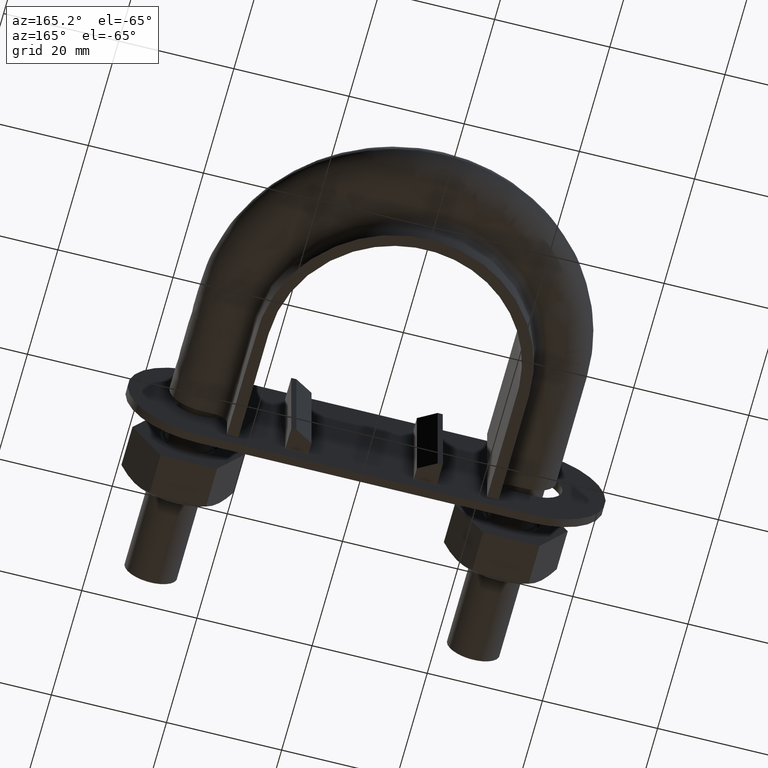
[diagram: clean part render]
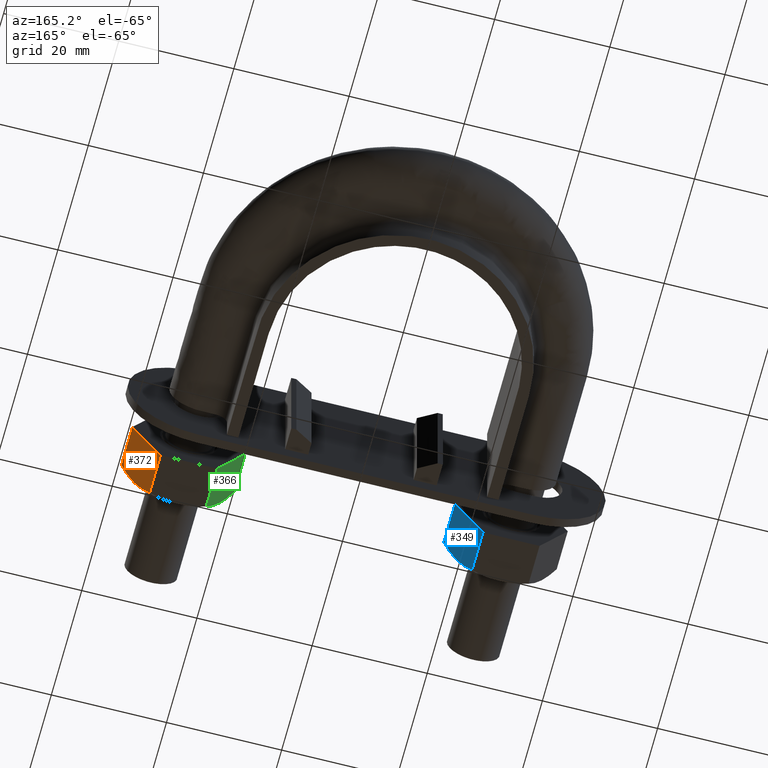
[diagram: same view with three faces highlighted in distinct colors, each labeled with its STEP entity id]
A machine part, auxiliary view with three faces highlighted in distinct colors.
Their STEP definitions:

[orange] entity #372 — the highlighted planar face has unit normal (-0.866, 0, 0.5).
#372 = ADVANCED_FACE( '', ( #619 ), #620, .F. );
#619 = FACE_OUTER_BOUND( '', #1701, .T. );
#620 = PLANE( '', #1702 );
#1701 = EDGE_LOOP( '', ( #2494, #2495, #2496, #2497, #2498 ) );
#1702 = AXIS2_PLACEMENT_3D( '', #2499, #2500, #2501 );
#2494 = ORIENTED_EDGE( '', *, *, #2747, .F. );
#2495 = ORIENTED_EDGE( '', *, *, #2780, .F. );
#2496 = ORIENTED_EDGE( '', *, *, #2781, .F. );
#2497 = ORIENTED_EDGE( '', *, *, #2754, .F. );
#2498 = ORIENTED_EDGE( '', *, *, #2774, .F. );
#2499 = CARTESIAN_POINT( '', ( 37.8149545762238, 25.0000000000002, -4.60010678743483E-012 ) );
#2500 = DIRECTION( '', ( -0.866025403784202, 1.81492883563560E-016, 0.500000000000410 ) );
#2501 = DIRECTION( '', ( 0.500000000000410, -1.75487645984624E-016, 0.866025403784202 ) );
#2747 = EDGE_CURVE( '', #3110, #3123, #3124, .T. );
#2754 = EDGE_CURVE( '', #3134, #3136, #3137, .T. );
#2774 = EDGE_CURVE( '', #3123, #3134, #3167, .T. );
#2780 = EDGE_CURVE( '', #3175, #3110, #3176, .T. );
#2781 = EDGE_CURVE( '', #3136, #3175, #3177, .F. );
#3110 = VERTEX_POINT( '', #3921 );
#3123 = VERTEX_POINT( '', #3942 );
#3124 = B_SPLINE_CURVE_WITH_KNOTS( '', 3, ( #3943, #3944, #3945, #3946, #3947, #3948, #3949, #3950 ), .UNSPECIFIED., .F., .F., ( 4, 2, 2, 4 ), ( 0.00493529902949373, 0.00616408349151779, 0.00739286795354185, 0.00985043687758998 ), .UNSPECIFIED. );
#3134 = VERTEX_POINT( '', #3961 );
#3136 = VERTEX_POINT( '', #3963 );
#3137 = LINE( '', #3964, #3965 );
#3167 = LINE( '', #4033, #4034 );
#3175 = VERTEX_POINT( '', #4054 );
#3176 = B_SPLINE_CURVE_WITH_KNOTS( '', 3, ( #4055, #4056, #4057, #4058, #4059, #4060 ), .UNSPECIFIED., .F., .F., ( 4, 2, 4 ), ( 7.17194508350478E-007, 0.00246800811200104, 0.00493529902949373 ), .UNSPECIFIED. );
#3177 = LINE( '', #4061, #4062 );
#3921 = CARTESIAN_POINT( '', ( 35.3612159321659, 17.0000000000002, -4.25000000000348 ) );
#3942 = CARTESIAN_POINT( '', ( 37.7999656118193, 17.7505553499467, -0.0259616479059725 ) );
#3943 = CARTESIAN_POINT( '', ( 35.3612159321659, 17.0000000000002, -4.25000000000346 ) );
#3944 = CARTESIAN_POINT( '', ( 35.5680707460415, 17.0000000000002, -3.89171695258105 ) );
#3945 = CARTESIAN_POINT( '', ( 35.7759593429675, 17.0177112141222, -3.53164334039148 ) );
#3946 = CARTESIAN_POINT( '', ( 36.1872154329953, 17.0863020976800, -2.81932689754186 ) );
#3947 = CARTESIAN_POINT( '', ( 36.3914764911651, 17.1371114863341, -2.46553636678438 ) );
#3948 = CARTESIAN_POINT( '', ( 37.0006497745576, 17.3331491064657, -1.41041728933623 ) );
#3949 = CARTESIAN_POINT( '', ( 37.4019654977712, 17.5218250443851, -0.715318066854786 ) );
#3950 = CARTESIAN_POINT( '', ( 37.7999656118193, 17.7505553499467, -0.0259616479059675 ) );
#3961 = CARTESIAN_POINT( '', ( 37.7999656118193, 25.0000000000002, -0.0259616479059745 ) );
#3963 = CARTESIAN_POINT( '', ( 32.9224662525125, 25.0000000000002, -8.47403835210099 ) );
#3964 = CARTESIAN_POINT( '', ( 32.9112159321639, 25.0000000000002, -8.49352447854612 ) );
#3965 = VECTOR( '', #4381, 1000.00000000000 );
#4033 = CARTESIAN_POINT( '', ( 37.7999656118193, 25.0000000000002, -0.0259616479059740 ) );
#4034 = VECTOR( '', #4406, 999.999999999996 );
#4054 = CARTESIAN_POINT( '', ( 32.9224662525125, 17.7505553499467, -8.47403835210099 ) );
#4055 = CARTESIAN_POINT( '', ( 32.9224662525124, 17.7505553499467, -8.47403835210095 ) );
#4056 = CARTESIAN_POINT( '', ( 33.3215180192848, 17.5212206605157, -7.78286041720181 ) );
#4057 = CARTESIAN_POINT( '', ( 33.7234521124779, 17.3324529479807, -7.08669014649799 ) );
#4058 = CARTESIAN_POINT( '', ( 34.5355975738472, 17.0714150925761, -5.68001294427155 ) );
#4059 = CARTESIAN_POINT( '', ( 34.9458696942469, 17.0000000000002, -4.96940078681095 ) );
#4060 = CARTESIAN_POINT( '', ( 35.3612159321659, 17.0000000000002, -4.25000000000346 ) );
#4061 = CARTESIAN_POINT( '', ( 32.9224662525125, 25.0000000000002, -8.47403835210099 ) );
#4062 = VECTOR( '', #4412, 999.999999999996 );
#4381 = DIRECTION( '', ( -0.500000000000402, 1.75487645984623E-016, -0.866025403784207 ) );
#4406 = DIRECTION( '', ( 2.44921270764475E-016, 1.00000000000000, 6.12303176911189E-017 ) );
#4412 = DIRECTION( '', ( 2.44921270764475E-016, 1.00000000000000, 6.12303176911189E-017 ) );

[blue] entity #349 — the highlighted planar face has unit normal (-0.866, 0, 0.5).
#349 = ADVANCED_FACE( '', ( #568 ), #569, .F. );
#568 = FACE_OUTER_BOUND( '', #1650, .T. );
#569 = PLANE( '', #1651 );
#1650 = EDGE_LOOP( '', ( #2321, #2322, #2323, #2324, #2325 ) );
#1651 = AXIS2_PLACEMENT_3D( '', #2326, #2327, #2328 );
#2321 = ORIENTED_EDGE( '', *, *, #2695, .F. );
#2322 = ORIENTED_EDGE( '', *, *, #2728, .F. );
#2323 = ORIENTED_EDGE( '', *, *, #2729, .F. );
#2324 = ORIENTED_EDGE( '', *, *, #2702, .F. );
#2325 = ORIENTED_EDGE( '', *, *, #2722, .F. );
#2326 = CARTESIAN_POINT( '', ( -18.1850454237766, 25.0000000000002, -4.60010678743483E-012 ) );
#2327 = DIRECTION( '', ( -0.866025403784202, 1.81492883563560E-016, 0.500000000000410 ) );
#2328 = DIRECTION( '', ( 0.500000000000410, -1.75487645984624E-016, 0.866025403784202 ) );
#2695 = EDGE_CURVE( '', #3024, #3037, #3038, .T. );
#2702 = EDGE_CURVE( '', #3048, #3050, #3051, .T. );
#2722 = EDGE_CURVE( '', #3037, #3048, #3081, .T. );
#2728 = EDGE_CURVE( '', #3089, #3024, #3090, .T. );
#2729 = EDGE_CURVE( '', #3050, #3089, #3091, .F. );
#3024 = VERTEX_POINT( '', #3749 );
#3037 = VERTEX_POINT( '', #3770 );
#3038 = B_SPLINE_CURVE_WITH_KNOTS( '', 3, ( #3771, #3772, #3773, #3774, #3775, #3776, #3777, #3778 ), .UNSPECIFIED., .F., .F., ( 4, 2, 2, 4 ), ( 0.00493529902949373, 0.00616408349151779, 0.00739286795354186, 0.00985043687758998 ), .UNSPECIFIED. );
#3048 = VERTEX_POINT( '', #3789 );
#3050 = VERTEX_POINT( '', #3791 );
#3051 = LINE( '', #3792, #3793 );
#3081 = LINE( '', #3861, #3862 );
#3089 = VERTEX_POINT( '', #3882 );
#3090 = B_SPLINE_CURVE_WITH_KNOTS( '', 3, ( #3883, #3884, #3885, #3886, #3887, #3888 ), .UNSPECIFIED., .F., .F., ( 4, 2, 4 ), ( 7.17194508350477E-007, 0.00246800811200104, 0.00493529902949373 ), .UNSPECIFIED. );
#3091 = LINE( '', #3889, #3890 );
#3749 = CARTESIAN_POINT( '', ( -20.6387840678345, 17.0000000000002, -4.25000000000348 ) );
#3770 = CARTESIAN_POINT( '', ( -18.2000343881811, 17.7505553499467, -0.0259616479059725 ) );
#3771 = CARTESIAN_POINT( '', ( -20.6387840678345, 17.0000000000002, -4.25000000000346 ) );
#3772 = CARTESIAN_POINT( '', ( -20.4319292539589, 17.0000000000002, -3.89171695258105 ) );
#3773 = CARTESIAN_POINT( '', ( -20.2240406570330, 17.0177112141222, -3.53164334039148 ) );
#3774 = CARTESIAN_POINT( '', ( -19.8127845670051, 17.0863020976800, -2.81932689754186 ) );
#3775 = CARTESIAN_POINT( '', ( -19.6085235088353, 17.1371114863341, -2.46553636678438 ) );
#3776 = CARTESIAN_POINT( '', ( -18.9993502254428, 17.3331491064657, -1.41041728933623 ) );
#3777 = CARTESIAN_POINT( '', ( -18.5980345022292, 17.5218250443851, -0.715318066854788 ) );
#3778 = CARTESIAN_POINT( '', ( -18.2000343881811, 17.7505553499467, -0.0259616479059685 ) );
#3789 = CARTESIAN_POINT( '', ( -18.2000343881811, 25.0000000000002, -0.0259616479059745 ) );
#3791 = CARTESIAN_POINT( '', ( -23.0775337474879, 25.0000000000002, -8.47403835210099 ) );
#3792 = CARTESIAN_POINT( '', ( -23.0887840678365, 25.0000000000002, -8.49352447854612 ) );
#3793 = VECTOR( '', #4297, 1000.00000000000 );
#3861 = CARTESIAN_POINT( '', ( -18.2000343881811, 25.0000000000002, -0.0259616479059740 ) );
#3862 = VECTOR( '', #4322, 999.999999999996 );
#3882 = CARTESIAN_POINT( '', ( -23.0775337474879, 17.7505553499467, -8.47403835210099 ) );
#3883 = CARTESIAN_POINT( '', ( -23.0775337474880, 17.7505553499467, -8.47403835210095 ) );
#3884 = CARTESIAN_POINT( '', ( -22.6784819807156, 17.5212206605157, -7.78286041720181 ) );
#3885 = CARTESIAN_POINT( '', ( -22.2765478875225, 17.3324529479807, -7.08669014649799 ) );
#3886 = CARTESIAN_POINT( '', ( -21.4644024261533, 17.0714150925761, -5.68001294427155 ) );
#3887 = CARTESIAN_POINT( '', ( -21.0541303057535, 17.0000000000002, -4.96940078681095 ) );
#3888 = CARTESIAN_POINT( '', ( -20.6387840678345, 17.0000000000002, -4.25000000000346 ) );
#3889 = CARTESIAN_POINT( '', ( -23.0775337474879, 25.0000000000002, -8.47403835210099 ) );
#3890 = VECTOR( '', #4328, 999.999999999996 );
#4297 = DIRECTION( '', ( -0.500000000000402, 1.75487645984623E-016, -0.866025403784207 ) );
#4322 = DIRECTION( '', ( 2.44921270764475E-016, 1.00000000000000, 6.12303176911189E-017 ) );
#4328 = DIRECTION( '', ( 2.44921270764475E-016, 1.00000000000000, 6.12303176911189E-017 ) );

[green] entity #366 — the highlighted planar face has unit normal (0.866, -0, 0.5).
#366 = ADVANCED_FACE( '', ( #607 ), #608, .F. );
#607 = FACE_OUTER_BOUND( '', #1689, .T. );
#608 = PLANE( '', #1690 );
#1689 = EDGE_LOOP( '', ( #2450, #2451, #2452, #2453, #2454 ) );
#1690 = AXIS2_PLACEMENT_3D( '', #2455, #2456, #2457 );
#2450 = ORIENTED_EDGE( '', *, *, #2771, .F. );
#2451 = ORIENTED_EDGE( '', *, *, #2766, .F. );
#2452 = ORIENTED_EDGE( '', *, *, #2772, .F. );
#2453 = ORIENTED_EDGE( '', *, *, #2758, .F. );
#2454 = ORIENTED_EDGE( '', *, *, #2773, .F. );
#2455 = CARTESIAN_POINT( '', ( 23.0925227118844, 25.0000000000002, -8.49999999999777 ) );
#2456 = DIRECTION( '', ( 0.866025403784671, -2.42723201254794E-016, 0.499999999999598 ) );
#2457 = DIRECTION( '', ( 0.499999999999598, -6.94336247798245E-017, -0.866025403784671 ) );
#2758 = EDGE_CURVE( '', #3142, #3144, #3145, .T. );
#2766 = EDGE_CURVE( '', #3156, #3105, #3158, .T. );
#2771 = EDGE_CURVE( '', #3105, #3163, #3164, .T. );
#2772 = EDGE_CURVE( '', #3144, #3156, #3165, .F. );
#2773 = EDGE_CURVE( '', #3163, #3142, #3166, .T. );
#3105 = VERTEX_POINT( '', #3916 );
#3142 = VERTEX_POINT( '', #3971 );
#3144 = VERTEX_POINT( '', #3973 );
#3145 = LINE( '', #3974, #3975 );
#3156 = VERTEX_POINT( '', #3996 );
#3158 = B_SPLINE_CURVE_WITH_KNOTS( '', 3, ( #3998, #3999, #4000, #4001, #4002, #4003 ), .UNSPECIFIED., .F., .F., ( 4, 2, 4 ), ( 4.83064900407183E-007, 0.00246777364959070, 0.00493506423428099 ), .UNSPECIFIED. );
#3163 = VERTEX_POINT( '', #4020 );
#3164 = B_SPLINE_CURVE_WITH_KNOTS( '', 3, ( #4021, #4022, #4023, #4024, #4025, #4026, #4027, #4028 ), .UNSPECIFIED., .F., .F., ( 4, 2, 2, 4 ), ( 0.00493506423428099, 0.00616384870526321, 0.00739263317624543, 0.00985020211820987 ), .UNSPECIFIED. );
#3165 = LINE( '', #4029, #4030 );
#3166 = LINE( '', #4031, #4032 );
#3916 = CARTESIAN_POINT( '', ( 20.6387840678305, 17.0000000000002, -4.24999999999658 ) );
#3971 = CARTESIAN_POINT( '', ( 23.0775337474800, 25.0000000000002, -8.47403835209638 ) );
#3973 = CARTESIAN_POINT( '', ( 18.2000343881811, 25.0000000000002, -0.0259616478967847 ) );
#3974 = CARTESIAN_POINT( '', ( 18.1887840678325, 25.0000000000002, -0.00647552145165062 ) );
#3975 = VECTOR( '', #4389, 1000.00000000000 );
#3996 = CARTESIAN_POINT( '', ( 18.2000343881811, 17.7505553499467, -0.0259616478967877 ) );
#3998 = CARTESIAN_POINT( '', ( 18.2000343881810, 17.7505553499468, -0.0259616478968375 ) );
#3999 = CARTESIAN_POINT( '', ( 18.5990867524615, 17.5212203171280, -0.717140617711960 ) );
#4000 = CARTESIAN_POINT( '', ( 19.0010212207032, 17.3324525365443, -1.41331153802037 ) );
#4001 = CARTESIAN_POINT( '', ( 19.8131667591032, 17.0714148540588, -2.81998887367109 ) );
#4002 = CARTESIAN_POINT( '', ( 20.2234385762099, 17.0000000000002, -3.53060050581431 ) );
#4003 = CARTESIAN_POINT( '', ( 20.6387840678305, 17.0000000000002, -4.24999999999661 ) );
#4020 = CARTESIAN_POINT( '', ( 23.0775337474800, 17.7505553499467, -8.47403835209638 ) );
#4021 = CARTESIAN_POINT( '', ( 20.6387840678305, 17.0000000000002, -4.24999999999661 ) );
#4022 = CARTESIAN_POINT( '', ( 20.8456385394370, 17.0000000000002, -4.60828245459230 ) );
#4023 = CARTESIAN_POINT( '', ( 21.0535275305439, 17.0177112081766, -4.96835674952404 ) );
#4024 = CARTESIAN_POINT( '', ( 21.4647840563410, 17.0863021936215, -5.68067394714963 ) );
#4025 = CARTESIAN_POINT( '', ( 21.6690452347212, 17.1371116504197, -6.03446468611840 ) );
#4026 = CARTESIAN_POINT( '', ( 22.2782186306627, 17.3331494013915, -7.08958395850949 ) );
#4027 = CARTESIAN_POINT( '', ( 22.6795341003735, 17.5218253127358, -7.78468274191268 ) );
#4028 = CARTESIAN_POINT( '', ( 23.0775337474800, 17.7505553499468, -8.47403835209637 ) );
#4029 = CARTESIAN_POINT( '', ( 18.2000343881811, 25.0000000000002, -0.0259616478967873 ) );
#4030 = VECTOR( '', #4404, 999.999999999996 );
#4031 = CARTESIAN_POINT( '', ( 23.0775337474800, 25.0000000000002, -8.47403835209638 ) );
#4032 = VECTOR( '', #4405, 999.999999999996 );
#4389 = DIRECTION( '', ( -0.499999999999590, 6.94336247798221E-017, 0.866025403784675 ) );
#4404 = DIRECTION( '', ( 2.44921270764475E-016, 1.00000000000000, 6.12303176911189E-017 ) );
#4405 = DIRECTION( '', ( 2.44921270764475E-016, 1.00000000000000, 6.12303176911189E-017 ) );